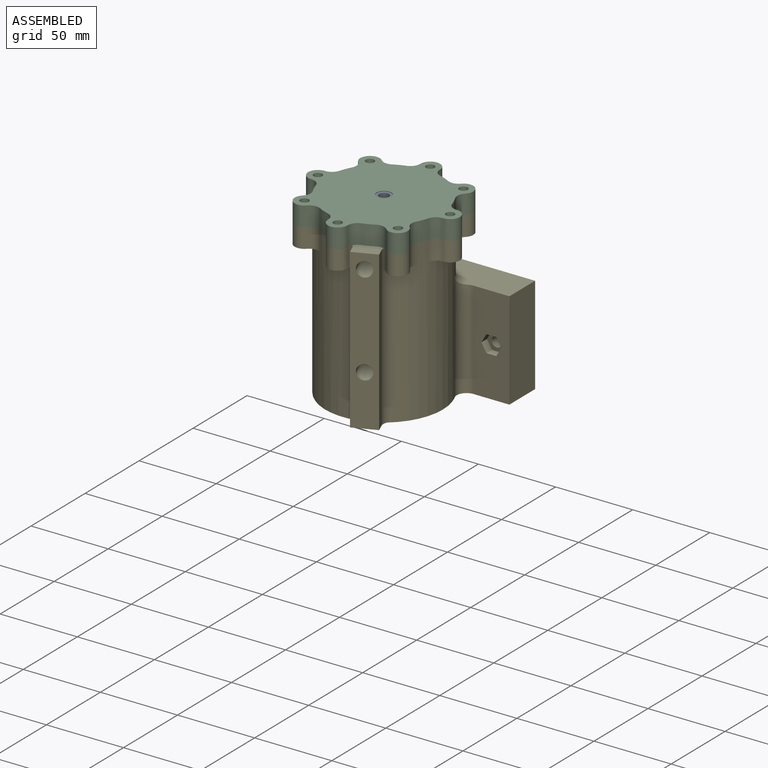
[diagram: assembled view]
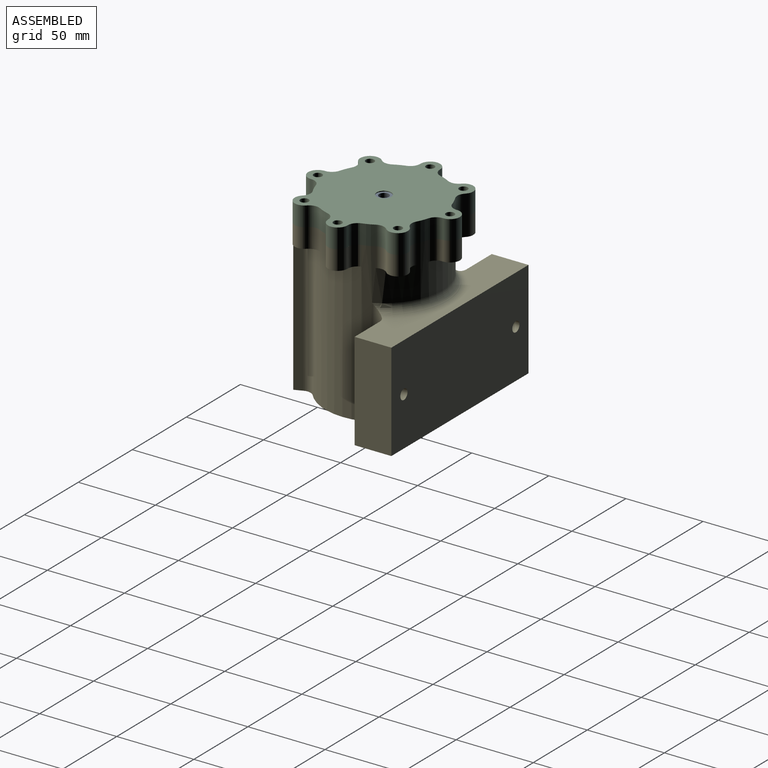
[diagram: assembled view, second angle]
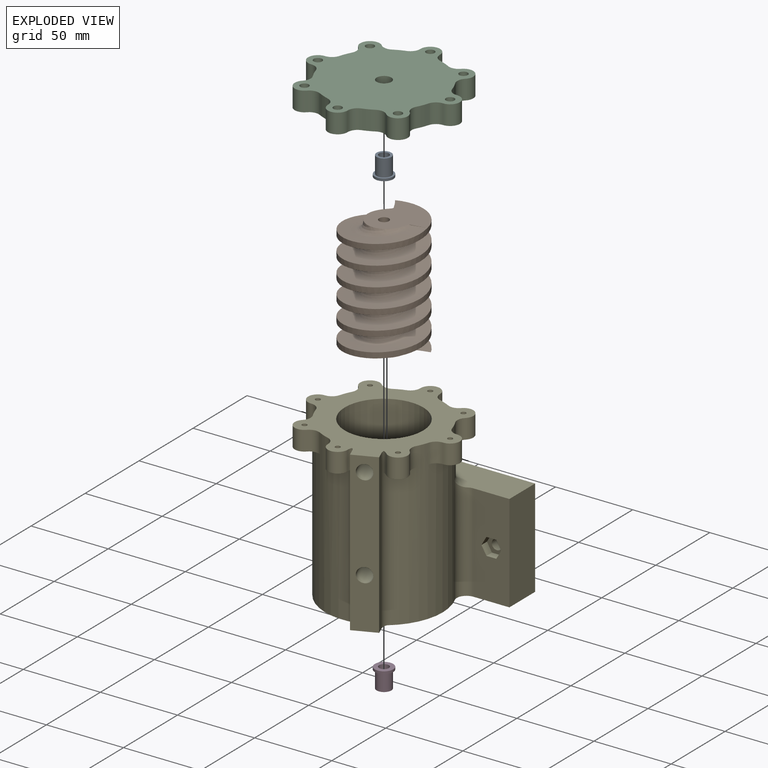
[diagram: exploded view]
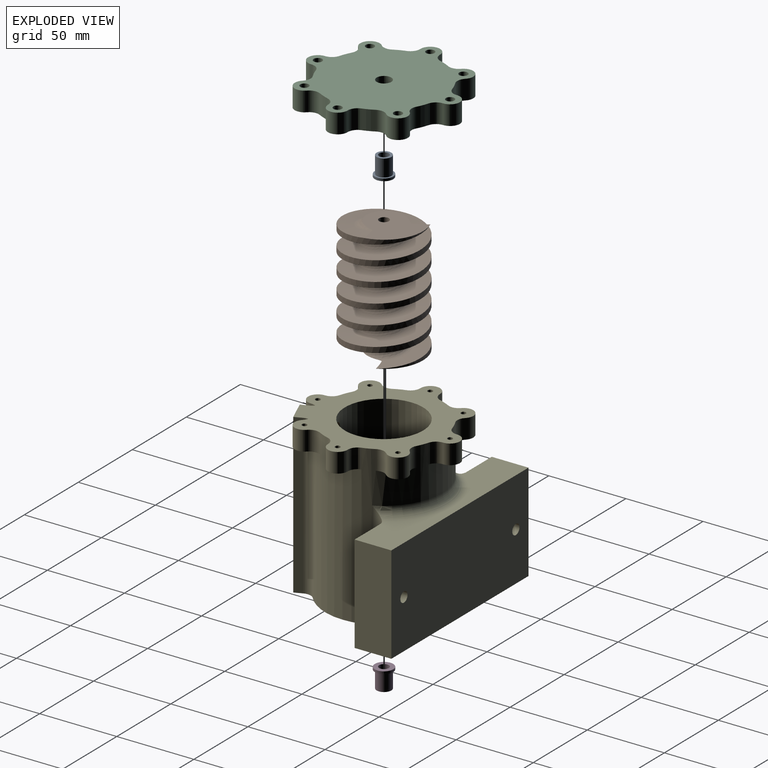
[diagram: exploded view, second angle]
ASSEMBLY  parts=5 mates=4
PART A: 6 faces, bbox 11.9x11.9x12.7 mm
  f0: cylinder r=3.17mm len=12.7mm, axis (0,0,-1), area 253.4mm2, adj f2,f3
  f1: cylinder r=4.76mm len=11.11mm, axis (0,0,-1), area 332.5mm2, adj f2,f5
  f2: plane 9.53x9.53mm, normal (0,0,1), area 39.6mm2, adj f0,f1
  f3: plane 11.94x11.94mm, normal (0,0,-1), area 80.3mm2, adj f0,f4
  f4: cylinder r=5.97mm len=11.94mm, axis (0,0,-1), area 59.5mm2, adj f3,f5
  f5: plane 11.94x11.94mm, normal (0,0,1), area 40.7mm2, adj f1,f4
PART B: 8 faces, bbox 50.6x50.6x95.3 mm
  f0: cylinder r=3.17mm len=75.69mm, axis (0,0,-1), area 1510mm2, adj f2,f3
  f1: cylinder r=25.27mm len=75.69mm, axis (0,0,-1), area 3779.7mm2, adj f2,f3,f4,f6
  f2: plane 36.69x36.54mm, normal (0,0,1), area 842.9mm2, adj f0,f1,f4,f5,f7
  f3: plane 36.4x36.13mm, normal (0,0,-1), area 831.7mm2, adj f0,f1,f4,f5,f6
  f4: bspline ~77.98x50.55mm, area 7348.6mm2, adj f1,f2,f3,f5
  f5: bspline ~95.25x31.5mm, area 7171.6mm2, adj f2,f3,f4,f6,f7
  f6: bspline ~76.39x50.55mm, area 7357mm2, adj f1,f3,f5,f7
  f7: plane 10.94x0.27mm, normal (0,-1,0), area 1.1mm2, adj f2,f5,f6
PART C: 61 faces, bbox 98.4x98.4x12.7 mm
  f0: cylinder r=4.76mm len=11.61mm, axis (0,0,-1), area 347.5mm2, adj f17,f60
  f1: cylinder r=1.6mm len=10.03mm, axis (0,0,-1), area 100.9mm2, adj f18,f58
  f2: cylinder r=1.6mm len=10.03mm, axis (0,0,-1), area 100.9mm2, adj f18,f56
  f3: cylinder r=1.6mm len=10.03mm, axis (0,0,-1), area 100.9mm2, adj f18,f54
  f4: cylinder r=1.6mm len=10.03mm, axis (0,0,-1), area 100.9mm2, adj f18,f52
  f5: cylinder r=1.6mm len=10.03mm, axis (0,0,-1), area 100.9mm2, adj f18,f50
  f6: cylinder r=1.6mm len=10.03mm, axis (0,0,-1), area 100.9mm2, adj f18,f48
  f7: cylinder r=1.6mm len=10.03mm, axis (0,0,-1), area 100.9mm2, adj f18,f46
  f8: cylinder r=1.6mm len=10.03mm, axis (0,0,-1), area 100.9mm2, adj f18,f44
  f9: cylinder r=38.1mm len=12.7mm, axis (0,0,-1), area 99.7mm2, adj f17,f18,f27,f30
  f10: cylinder r=38.1mm len=12.7mm, axis (0,0,-1), area 99.7mm2, adj f17,f18,f28,f41
  f11: cylinder r=38.1mm len=12.7mm, axis (0,0,-1), area 99.7mm2, adj f17,f18,f29,f32
  f12: cylinder r=38.1mm len=12.7mm, axis (0,0,-1), area 99.7mm2, adj f17,f18,f31,f34
  f13: cylinder r=38.1mm len=12.7mm, axis (0,0,-1), area 99.7mm2, adj f17,f18,f33,f36
  f14: cylinder r=38.1mm len=12.7mm, axis (0,0,-1), area 99.7mm2, adj f17,f18,f35,f38
  f15: cylinder r=38.1mm len=12.7mm, axis (0,0,-1), area 99.7mm2, adj f17,f18,f37,f40
  f16: cylinder r=38.1mm len=12.7mm, axis (0,0,-1), area 99.7mm2, adj f17,f18,f39,f42
  f17: plane 98.43x98.43mm, normal (0,0,1), area 5382.3mm2, adj f0,f9,f10,f11,f12,f13,f14,f15
  f18: plane 98.43x98.43mm, normal (0,0,-1), area 5457.6mm2, adj f1,f2,f3,f4,f5,f6,f7,f8
  f19: cylinder r=6.35mm len=12.7mm, axis (0,0,-1), area 256.7mm2, adj f17,f18,f41,f42
  f20: cylinder r=6.35mm len=12.7mm, axis (0,0,-1), area 256.7mm2, adj f17,f18,f39,f40
  f21: cylinder r=6.35mm len=12.7mm, axis (0,0,-1), area 256.7mm2, adj f17,f18,f37,f38
  f22: cylinder r=6.35mm len=12.7mm, axis (0,0,-1), area 256.7mm2, adj f17,f18,f35,f36
  f23: cylinder r=6.35mm len=12.7mm, axis (0,0,-1), area 256.7mm2, adj f17,f18,f33,f34
  f24: cylinder r=6.35mm len=12.7mm, axis (0,0,-1), area 256.7mm2, adj f17,f18,f31,f32
  f25: cylinder r=6.35mm len=12.7mm, axis (0,0,-1), area 256.7mm2, adj f17,f18,f29,f30
  f26: cylinder r=6.35mm len=12.7mm, axis (0,0,-1), area 256.7mm2, adj f17,f18,f27,f28
  f27: cylinder r=6.35mm len=12.7mm, axis (0,0,1), area 105mm2, adj f9,f17,f18,f26
  f28: cylinder r=6.35mm len=12.7mm, axis (0,0,-1), area 105mm2, adj f10,f17,f18,f26
  f29: cylinder r=6.35mm len=12.7mm, axis (0,0,1), area 105mm2, adj f11,f17,f18,f25
  f30: cylinder r=6.35mm len=12.7mm, axis (0,0,-1), area 105mm2, adj f9,f17,f18,f25
  f31: cylinder r=6.35mm len=12.7mm, axis (0,0,1), area 105mm2, adj f12,f17,f18,f24
  f32: cylinder r=6.35mm len=12.7mm, axis (0,0,-1), area 105mm2, adj f11,f17,f18,f24
  f33: cylinder r=6.35mm len=12.7mm, axis (0,0,1), area 105mm2, adj f13,f17,f18,f23
  f34: cylinder r=6.35mm len=12.7mm, axis (0,0,-1), area 105mm2, adj f12,f17,f18,f23
  f35: cylinder r=6.35mm len=12.7mm, axis (0,0,1), area 105mm2, adj f14,f17,f18,f22
  f36: cylinder r=6.35mm len=12.7mm, axis (0,0,-1), area 105mm2, adj f13,f17,f18,f22
  f37: cylinder r=6.35mm len=12.7mm, axis (0,0,1), area 105mm2, adj f15,f17,f18,f21
  f38: cylinder r=6.35mm len=12.7mm, axis (0,0,-1), area 105mm2, adj f14,f17,f18,f21
  f39: cylinder r=6.35mm len=12.7mm, axis (0,0,1), area 105mm2, adj f16,f17,f18,f20
  f40: cylinder r=6.35mm len=12.7mm, axis (0,0,-1), area 105mm2, adj f15,f17,f18,f20
  f41: cylinder r=6.35mm len=12.7mm, axis (0,0,1), area 105mm2, adj f10,f17,f18,f19
  f42: cylinder r=6.35mm len=12.7mm, axis (0,0,-1), area 105mm2, adj f16,f17,f18,f19
  f43: cylinder r=2.75mm len=5.5mm, axis (0,0,1), area 46.1mm2, adj f17,f44
  f44: plane 5.5x5.5mm, normal (0,0,1), area 15.7mm2, adj f8,f43
  f45: cylinder r=2.75mm len=5.5mm, axis (0,0,1), area 46.1mm2, adj f17,f46
  f46: plane 5.5x5.5mm, normal (0,0,1), area 15.7mm2, adj f7,f45
  f47: cylinder r=2.75mm len=5.5mm, axis (0,0,1), area 46.1mm2, adj f17,f48
  f48: plane 5.5x5.5mm, normal (0,0,1), area 15.7mm2, adj f6,f47
  f49: cylinder r=2.75mm len=5.5mm, axis (0,0,1), area 46.1mm2, adj f17,f50
  f50: plane 5.5x5.5mm, normal (0,0,1), area 15.7mm2, adj f5,f49
  f51: cylinder r=2.75mm len=5.5mm, axis (0,0,1), area 46.1mm2, adj f17,f52
  f52: plane 5.5x5.5mm, normal (0,0,1), area 15.7mm2, adj f4,f51
  f53: cylinder r=2.75mm len=5.5mm, axis (0,0,1), area 46.1mm2, adj f17,f54
  f54: plane 5.5x5.5mm, normal (0,0,1), area 15.7mm2, adj f3,f53
  f55: cylinder r=2.75mm len=5.5mm, axis (0,0,1), area 46.1mm2, adj f17,f56
  f56: plane 5.5x5.5mm, normal (0,0,1), area 15.7mm2, adj f2,f55
  f57: cylinder r=2.75mm len=5.5mm, axis (0,0,1), area 46.1mm2, adj f17,f58
  f58: plane 5.5x5.5mm, normal (0,0,1), area 15.7mm2, adj f1,f57
  f59: cylinder r=6.22mm len=12.45mm, axis (0,0,-1), area 42.5mm2, adj f18,f60
  f60: plane 12.45x12.45mm, normal (0,0,-1), area 50.4mm2, adj f0,f59
PART D: same geometry as A
PART E: 141 faces, bbox 127x102.2x104 mm
  f0: plane 17.99x12.7mm, normal (0,0,-1), area 109.6mm2, adj f1,f10,f36,f51,f104,f105,f106,f107
  f1: cylinder r=6.35mm len=12.7mm, axis (0,0,-1), area 41.5mm2, adj f0,f19,f36,f138
  f2: plane 18.54x13.69mm, normal (0,0,-1), area 109.6mm2, adj f10,f38,f49,f50,f111,f112,f113,f114
  f3: plane 63.5x23.34mm, normal (0,-1,0), area 1375.1mm2, adj f13,f14,f20,f22,f62,f63,f64,f65
  f4: plane 63.5x23.34mm, normal (0,-1,0), area 1375.1mm2, adj f11,f14,f20,f21,f69,f70,f71,f72
  f5: cylinder r=3.3mm len=18.73mm, axis (0,-1,0), area 388.6mm2, adj f12,f75
  f6: cylinder r=3.3mm len=18.73mm, axis (0,-1,0), area 388.6mm2, adj f12,f68
  f7: cylinder r=2.48mm len=12.7mm, axis (0,0,1), area -1mm2, adj f14,f15,f60,f61
  f8: plane 50.8x50.8mm, normal (0,0,1), area 1905.2mm2, adj f16,f18
  f9: cylinder r=4.76mm len=11.62mm, axis (0,0,1), area 347.7mm2, adj f15,f17
  f10: cylinder r=38.1mm len=103.12mm, axis (0,0,1), area 14092.7mm2, adj f0,f2,f14,f19,f21,f22,f25,f28
  f11: plane 63.5x23.81mm, normal (1,0,0), area 1512.1mm2, adj f4,f12,f14,f20
  f12: plane 127x63.5mm, normal (0,1,0), area 7996mm2, adj f5,f6,f11,f13,f14,f20
  f13: plane 63.5x23.81mm, normal (-1,0,0), area 1512.1mm2, adj f3,f12,f14,f20
  f14: plane 127x87.31mm, normal (0,0,-1), area 7112.3mm2, adj f3,f4,f7,f10,f11,f12,f13,f21
  f15: plane 9.53x9.53mm, normal (0,0,1), area 42.4mm2, adj f7,f9,f60,f61
  f16: cylinder r=6.22mm len=12.45mm, axis (0,0,1), area 42.2mm2, adj f8,f17
  f17: plane 12.45x12.45mm, normal (0,0,1), area 50.4mm2, adj f9,f16
  f18: cylinder r=25.4mm len=77.72mm, axis (0,0,-1), area 12260.9mm2, adj f8,f19,f132,f133
  f19: plane 98.43x98.43mm, normal (0,0,1), area 3705.4mm2, adj f1,f10,f18,f23,f24,f26,f27,f29
  f20: plane 127x24.63mm, normal (0,0,1), area 2051mm2, adj f3,f4,f11,f12,f13,f21,f22,f140
  f21: cylinder r=6.35mm len=69.85mm, axis (0,0,1), area 833.5mm2, adj f4,f10,f14,f20,f140
  f22: cylinder r=6.35mm len=69.85mm, axis (0,0,1), area 833.5mm2, adj f3,f10,f14,f20,f140
  f23: cylinder r=1.6mm len=7.37mm, axis (0,0,1), area 74.1mm2, adj f19,f82
  f24: cylinder r=6.35mm len=12.7mm, axis (0,0,1), area 256.7mm2, adj f19,f25,f58,f59
  f25: plane 21.77x12.7mm, normal (0,0,-1), area 115.1mm2, adj f10,f24,f58,f59,f76,f77,f78,f79
  f26: cylinder r=1.6mm len=7.37mm, axis (0,0,1), area 74.1mm2, adj f19,f89
  f27: cylinder r=6.35mm len=12.7mm, axis (0,0,1), area 256.7mm2, adj f19,f28,f56,f57
  f28: plane 18.54x18.54mm, normal (0,0,-1), area 115.1mm2, adj f10,f27,f56,f57,f83,f84,f85,f86
  f29: cylinder r=1.6mm len=7.37mm, axis (0,0,1), area 74.1mm2, adj f19,f96
  f30: cylinder r=6.35mm len=12.7mm, axis (0,0,1), area 256.7mm2, adj f19,f31,f54,f55
  f31: plane 21.77x12.7mm, normal (0,0,-1), area 115.1mm2, adj f10,f30,f54,f55,f90,f91,f92,f93
  f32: cylinder r=1.6mm len=7.37mm, axis (0,0,1), area 74.1mm2, adj f19,f103
  f33: cylinder r=6.35mm len=12.7mm, axis (0,0,1), area 256.7mm2, adj f19,f34,f52,f53
  f34: plane 18.54x18.54mm, normal (0,0,-1), area 115.1mm2, adj f10,f33,f52,f53,f97,f98,f99,f100
  f35: cylinder r=1.6mm len=7.37mm, axis (0,0,1), area 74.1mm2, adj f19,f110
  f36: cylinder r=6.35mm len=12.7mm, axis (0,0,1), area 256.7mm2, adj f0,f1,f19,f51
  f37: cylinder r=1.6mm len=7.37mm, axis (0,0,1), area 74.1mm2, adj f19,f117
  f38: cylinder r=6.35mm len=12.7mm, axis (0,0,1), area 256.7mm2, adj f2,f19,f49,f50
  f39: cylinder r=1.6mm len=7.37mm, axis (0,0,1), area 74.1mm2, adj f19,f124
  f40: cylinder r=6.35mm len=12.7mm, axis (0,0,1), area 256.7mm2, adj f19,f41,f47,f48
  f41: plane 21.77x12.7mm, normal (0,0,-1), area 115.1mm2, adj f10,f40,f47,f48,f118,f119,f120,f121
  f42: cylinder r=1.6mm len=7.37mm, axis (0,0,1), area 74.1mm2, adj f19,f131
  f43: cylinder r=6.35mm len=12.7mm, axis (0,0,1), area 256.7mm2, adj f19,f44,f45,f46
  f44: plane 18.54x18.54mm, normal (0,0,-1), area 115.1mm2, adj f10,f43,f45,f46,f125,f126,f127,f128
  f45: cylinder r=6.35mm len=12.7mm, axis (0,0,-1), area 105mm2, adj f10,f19,f43,f44
  f46: cylinder r=6.35mm len=12.7mm, axis (0,0,-1), area 105mm2, adj f10,f19,f43,f44
  f47: cylinder r=6.35mm len=12.7mm, axis (0,0,-1), area 105mm2, adj f10,f19,f40,f41
  f48: cylinder r=6.35mm len=12.7mm, axis (0,0,-1), area 105mm2, adj f10,f19,f40,f41
  f49: cylinder r=6.35mm len=12.7mm, axis (0,0,-1), area 105mm2, adj f2,f10,f19,f38
  f50: cylinder r=6.35mm len=12.7mm, axis (0,0,-1), area 41.5mm2, adj f2,f19,f38,f139
  f51: cylinder r=6.35mm len=12.7mm, axis (0,0,-1), area 105mm2, adj f0,f10,f19,f36
  f52: cylinder r=6.35mm len=12.7mm, axis (0,0,-1), area 105mm2, adj f10,f19,f33,f34
  f53: cylinder r=6.35mm len=12.7mm, axis (0,0,-1), area 105mm2, adj f10,f19,f33,f34
  f54: cylinder r=6.35mm len=12.7mm, axis (0,0,-1), area 105mm2, adj f10,f19,f30,f31
  f55: cylinder r=6.35mm len=12.7mm, axis (0,0,-1), area 105mm2, adj f10,f19,f30,f31
  f56: cylinder r=6.35mm len=12.7mm, axis (0,0,-1), area 105mm2, adj f10,f19,f27,f28
  f57: cylinder r=6.35mm len=12.7mm, axis (0,0,-1), area 105mm2, adj f10,f19,f27,f28
  f58: cylinder r=6.35mm len=12.7mm, axis (0,0,-1), area 105mm2, adj f10,f19,f24,f25
  f59: cylinder r=6.35mm len=12.7mm, axis (0,0,-1), area 105mm2, adj f10,f19,f24,f25
  f60: bspline ~13.96x8.23mm, area 238.6mm2, adj f7,f14,f15,f61
  f61: bspline ~14.18x8.23mm, area 238.7mm2, adj f7,f14,f15,f60
  f62: plane 6.42x5.08mm, normal (0,0,1), area 32.6mm2, adj f3,f63,f67,f68
  f63: plane 5.56x5.08mm, normal (-0.87,0,0.5), area 32.6mm2, adj f3,f62,f64,f68
  f64: plane 5.56x5.08mm, normal (-0.87,0,-0.5), area 32.6mm2, adj f3,f63,f65,f68
  f65: plane 6.42x5.08mm, normal (0,0,-1), area 32.6mm2, adj f3,f64,f66,f68
  f66: plane 5.56x5.08mm, normal (0.87,0,-0.5), area 32.6mm2, adj f3,f65,f67,f68
  f67: plane 5.56x5.08mm, normal (0.87,0,0.5), area 32.6mm2, adj f3,f62,f66,f68
  f68: plane 12.83x11.11mm, normal (0,-1,0), area 72.7mm2, adj f6,f62,f63,f64,f65,f66,f67
  f69: plane 6.42x5.08mm, normal (0,0,1), area 32.6mm2, adj f4,f70,f74,f75
  f70: plane 5.56x5.08mm, normal (-0.87,0,0.5), area 32.6mm2, adj f4,f69,f71,f75
  f71: plane 5.56x5.08mm, normal (-0.87,0,-0.5), area 32.6mm2, adj f4,f70,f72,f75
  f72: plane 6.42x5.08mm, normal (0,0,-1), area 32.6mm2, adj f4,f71,f73,f75
  f73: plane 5.56x5.08mm, normal (0.87,0,-0.5), area 32.6mm2, adj f4,f72,f74,f75
  f74: plane 5.56x5.08mm, normal (0.87,0,0.5), area 32.6mm2, adj f4,f69,f73,f75
  f75: plane 12.83x11.11mm, normal (0,-1,0), area 72.7mm2, adj f5,f69,f70,f71,f72,f73,f74
  f76: plane 5.33x2.42mm, normal (-0.5,-0.87,0), area 14.9mm2, adj f25,f77,f81,f82
  f77: plane 5.33x2.42mm, normal (0.5,-0.87,0), area 14.9mm2, adj f25,f76,f78,f82
  f78: plane 5.33x2.79mm, normal (1,0,0), area 14.9mm2, adj f25,f77,f79,f82
  f79: plane 5.33x2.42mm, normal (0.5,0.87,0), area 14.9mm2, adj f25,f78,f80,f82
  f80: plane 5.33x2.42mm, normal (-0.5,0.87,0), area 14.9mm2, adj f25,f79,f81,f82
  f81: plane 5.33x2.79mm, normal (-1,0,0), area 14.9mm2, adj f25,f76,f80,f82
  f82: plane 5.59x4.84mm, normal (0,0,-1), area 12.2mm2, adj f23,f76,f77,f78,f79,f80,f81
  f83: plane 5.33x2.7mm, normal (0.26,-0.97,0), area 14.9mm2, adj f28,f84,f88,f89
  f84: plane 5.33x2.7mm, normal (0.97,-0.26,0), area 14.9mm2, adj f28,f83,f85,f89
  f85: plane 5.33x1.98mm, normal (0.71,0.71,0), area 14.9mm2, adj f28,f84,f86,f89
  f86: plane 5.33x2.7mm, normal (-0.26,0.97,0), area 14.9mm2, adj f28,f85,f87,f89
  f87: plane 5.33x2.7mm, normal (-0.97,0.26,0), area 14.9mm2, adj f28,f86,f88,f89
  f88: plane 5.33x1.98mm, normal (-0.71,-0.71,0), area 14.9mm2, adj f28,f83,f87,f89
  f89: plane 5.4x5.4mm, normal (0,0,-1), area 12.2mm2, adj f26,f83,f84,f85,f86,f87,f88
  f90: plane 5.33x2.42mm, normal (0.87,-0.5,0), area 14.9mm2, adj f31,f91,f95,f96
  f91: plane 5.33x2.42mm, normal (0.87,0.5,0), area 14.9mm2, adj f31,f90,f92,f96
  f92: plane 5.33x2.79mm, normal (0,1,0), area 14.9mm2, adj f31,f91,f93,f96
  f93: plane 5.33x2.42mm, normal (-0.87,0.5,0), area 14.9mm2, adj f31,f92,f94,f96
  f94: plane 5.33x2.42mm, normal (-0.87,-0.5,0), area 14.9mm2, adj f31,f93,f95,f96
  f95: plane 5.33x2.79mm, normal (0,-1,0), area 14.9mm2, adj f31,f90,f94,f96
  f96: plane 5.59x4.84mm, normal (0,0,-1), area 12.2mm2, adj f29,f90,f91,f92,f93,f94,f95
  f97: plane 5.33x2.7mm, normal (0.97,0.26,0), area 14.9mm2, adj f34,f98,f102,f103
  f98: plane 5.33x2.7mm, normal (0.26,0.97,0), area 14.9mm2, adj f34,f97,f99,f103
  f99: plane 5.33x1.98mm, normal (-0.71,0.71,0), area 14.9mm2, adj f34,f98,f100,f103
  f100: plane 5.33x2.7mm, normal (-0.97,-0.26,0), area 14.9mm2, adj f34,f99,f101,f103
  f101: plane 5.33x2.7mm, normal (-0.26,-0.97,0), area 14.9mm2, adj f34,f100,f102,f103
  f102: plane 5.33x1.98mm, normal (0.71,-0.71,0), area 14.9mm2, adj f34,f97,f101,f103
  f103: plane 5.4x5.4mm, normal (0,0,-1), area 12.2mm2, adj f32,f97,f98,f99,f100,f101,f102
  f104: plane 5.33x2.42mm, normal (0.5,0.87,0), area 14.9mm2, adj f0,f105,f109,f110
  f105: plane 5.33x2.42mm, normal (-0.5,0.87,0), area 14.9mm2, adj f0,f104,f106,f110
  f106: plane 5.33x2.79mm, normal (-1,0,0), area 14.9mm2, adj f0,f105,f107,f110
  f107: plane 5.33x2.42mm, normal (-0.5,-0.87,0), area 14.9mm2, adj f0,f106,f108,f110
  f108: plane 5.33x2.42mm, normal (0.5,-0.87,0), area 14.9mm2, adj f0,f107,f109,f110
  f109: plane 5.33x2.79mm, normal (1,0,0), area 14.9mm2, adj f0,f104,f108,f110
  f110: plane 5.59x4.84mm, normal (0,0,-1), area 12.2mm2, adj f35,f104,f105,f106,f107,f108,f109
  f111: plane 5.33x2.7mm, normal (-0.26,0.97,0), area 14.9mm2, adj f2,f112,f116,f117
  f112: plane 5.33x2.7mm, normal (-0.97,0.26,0), area 14.9mm2, adj f2,f111,f113,f117
  f113: plane 5.33x1.98mm, normal (-0.71,-0.71,0), area 14.9mm2, adj f2,f112,f114,f117
  f114: plane 5.33x2.7mm, normal (0.26,-0.97,0), area 14.9mm2, adj f2,f113,f115,f117
  f115: plane 5.33x2.7mm, normal (0.97,-0.26,0), area 14.9mm2, adj f2,f114,f116,f117
  f116: plane 5.33x1.98mm, normal (0.71,0.71,0), area 14.9mm2, adj f2,f111,f115,f117
  f117: plane 5.4x5.4mm, normal (0,0,-1), area 12.2mm2, adj f37,f111,f112,f113,f114,f115,f116
  f118: plane 5.33x2.42mm, normal (-0.87,0.5,0), area 14.9mm2, adj f41,f119,f123,f124
  f119: plane 5.33x2.42mm, normal (-0.87,-0.5,0), area 14.9mm2, adj f41,f118,f120,f124
  f120: plane 5.33x2.79mm, normal (0,-1,0), area 14.9mm2, adj f41,f119,f121,f124
  f121: plane 5.33x2.42mm, normal (0.87,-0.5,0), area 14.9mm2, adj f41,f120,f122,f124
  f122: plane 5.33x2.42mm, normal (0.87,0.5,0), area 14.9mm2, adj f41,f121,f123,f124
  f123: plane 5.33x2.79mm, normal (0,1,0), area 14.9mm2, adj f41,f118,f122,f124
  f124: plane 5.59x4.84mm, normal (0,0,-1), area 12.2mm2, adj f39,f118,f119,f120,f121,f122,f123
  f125: plane 5.33x2.7mm, normal (-0.97,-0.26,0), area 14.9mm2, adj f44,f126,f130,f131
  f126: plane 5.33x2.7mm, normal (-0.26,-0.97,0), area 14.9mm2, adj f44,f125,f127,f131
  f127: plane 5.33x1.98mm, normal (0.71,-0.71,0), area 14.9mm2, adj f44,f126,f128,f131
  f128: plane 5.33x2.7mm, normal (0.97,0.26,0), area 14.9mm2, adj f44,f127,f129,f131
  f129: plane 5.33x2.7mm, normal (0.26,0.97,0), area 14.9mm2, adj f44,f128,f130,f131
  f130: plane 5.33x1.98mm, normal (-0.71,0.71,0), area 14.9mm2, adj f44,f125,f129,f131
  f131: plane 5.4x5.4mm, normal (0,0,-1), area 12.2mm2, adj f42,f125,f126,f127,f128,f129,f130
  f132: cylinder r=4.76mm len=24.59mm, axis (0.38,-0.92,0), area 671.8mm2, adj f18,f137
  f133: cylinder r=4.76mm len=24.59mm, axis (0.38,-0.92,0), area 671.8mm2, adj f18,f137
  f134: plane 23.07x18.39mm, normal (0,0,-1), area 164.1mm2, adj f10,f135,f136,f137,f138,f139
  f135: plane 102.87x5.11mm, normal (0.92,0.38,0), area 569.3mm2, adj f19,f134,f137,f139
  f136: plane 102.87x5.11mm, normal (-0.92,-0.38,0), area 569.3mm2, adj f19,f134,f137,f138
  f137: plane 102.87x14.67mm, normal (0.38,-0.92,0), area 1490.5mm2, adj f19,f132,f133,f134,f135,f136
  f138: cylinder r=6.35mm len=102.87mm, axis (0,0,1), area 748.8mm2, adj f0,f1,f10,f19,f134,f136
  f139: cylinder r=6.35mm len=102.87mm, axis (0,0,1), area 748.8mm2, adj f2,f10,f19,f50,f134,f135
  f140: torus R=44.45mm, axis (0,0,1), area 831.5mm2, adj f10,f20,f21,f22
PLACE A t=(-25.78,-14.79,70.38)mm
PLACE B rot(axis=(0,0,1),10.5deg) t=(-25.78,-14.79,-6.84)mm
PLACE C t=(-25.78,-14.79,70.89)mm
PLACE D rot(axis=(0.09,-1,0),180deg) t=(-25.78,-14.79,-6.84)mm
PLACE E t=(-25.78,-14.79,-6.84)mm fixed
MATE fastened B.f1 <-> D.f4  axis (0,0,-1) through (-25.78,-14.79,-6.84)mm
MATE fastened A.f4 <-> C.f59  axis (0,0,1) through (-25.78,-14.79,71.97)mm
MATE revolute B.f1 <-> E.f18  axis (0,0,-1) through (-25.78,-14.79,-6.84)mm
MATE fastened C.f9 <-> E.f18  axis (0,0,-1) through (-25.78,-14.79,70.89)mm
